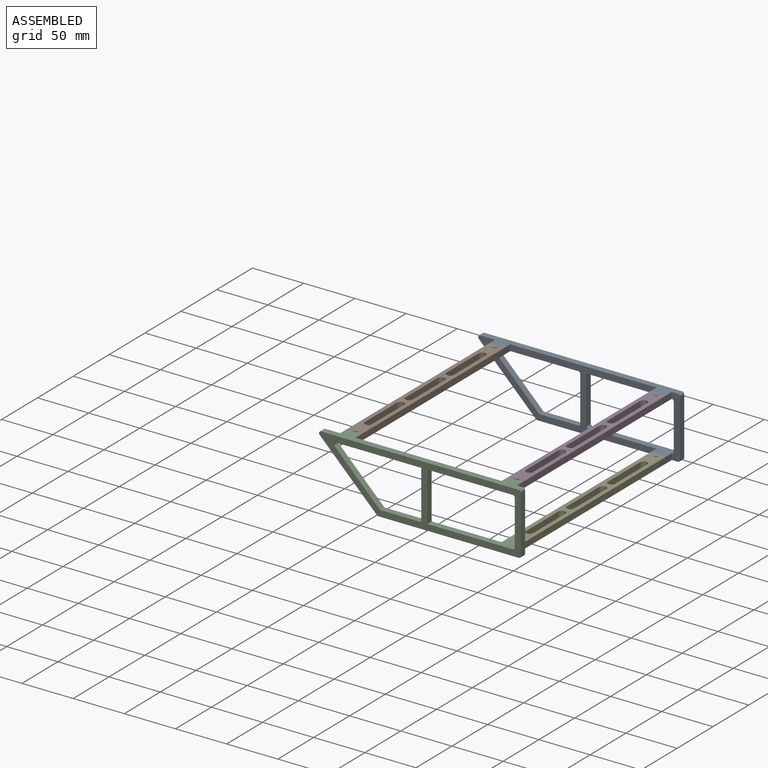
[diagram: assembled view]
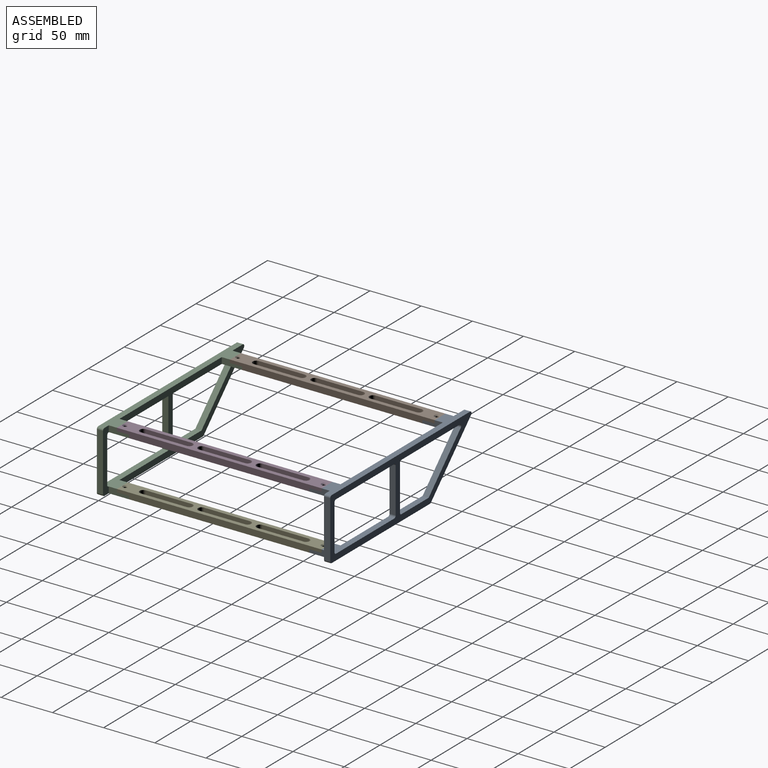
[diagram: assembled view, second angle]
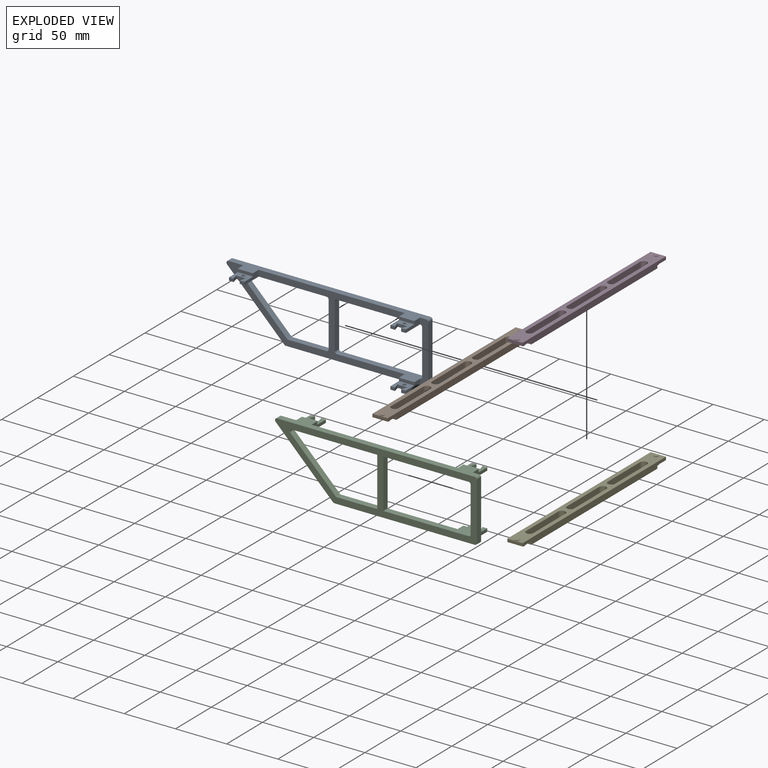
[diagram: exploded view]
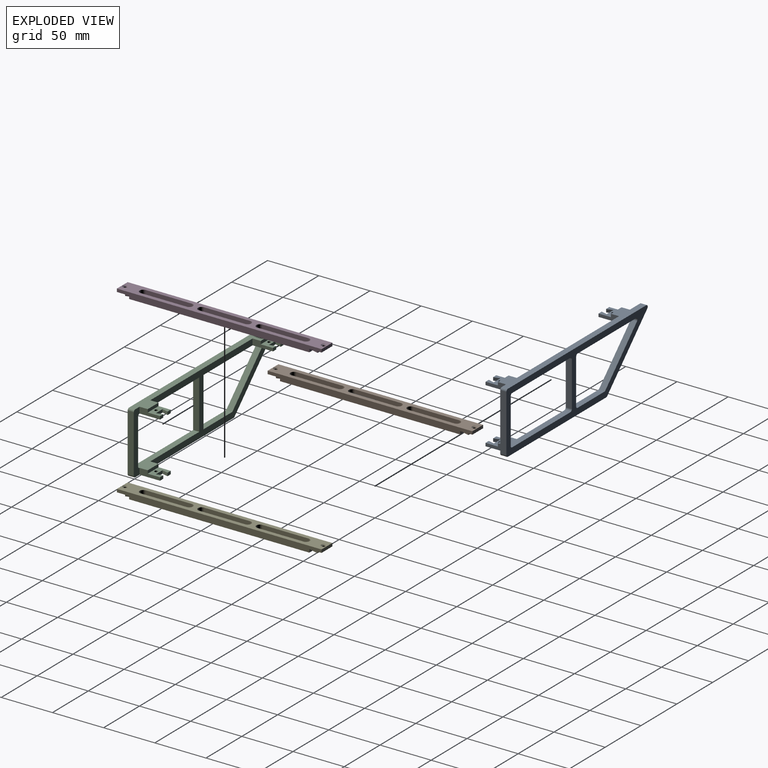
[diagram: exploded view, second angle]
ASSEMBLY  parts=5 mates=4
PART A: 56 faces, bbox 197.2x60x26 mm
  f0: plane 81.34x26mm, normal (0,-1,0), area 734.4mm2, adj f8,f10,f11,f12,f16,f23,f30,f35
  f1: plane 81.34x14mm, normal (0,1,0), area 608.1mm2, adj f16,f23,f29,f41,f42,f43,f53
  f2: plane 4.5x3mm, normal (0,0,1), area 13.5mm2, adj f3,f18,f42,f44
  f3: plane 15x12mm, normal (0,1,0), area 126.3mm2, adj f2,f4,f41,f42,f43,f44,f45,f46
  f4: plane 4.5x3mm, normal (0,0,1), area 13.5mm2, adj f3,f18,f41,f45
  f5: plane 60x8mm, normal (0,0,1), area 384mm2, adj f9,f13,f18,f19,f20,f25,f26,f28
  f6: plane 4.5x3mm, normal (0,0,1), area 13.5mm2, adj f7,f14,f32,f40
  f7: plane 81.34x26mm, normal (0,-1,0), area 734.4mm2, adj f6,f13,f14,f15,f16,f23,f28,f38
  f8: plane 4.5x3mm, normal (0,0,1), area 13.5mm2, adj f0,f10,f34,f37
  f9: plane 193.17x14mm, normal (0,1,0), area 1399mm2, adj f5,f10,f11,f13,f14,f16,f23,f26
  f10: plane 20x6mm, normal (-1,0,0), area 84mm2, adj f0,f8,f9,f16,f33,f34
  f11: plane 20x6mm, normal (1,0,0), area 84mm2, adj f0,f9,f12,f16,f33,f34
  f12: plane 4.5x3mm, normal (0,0,1), area 13.5mm2, adj f0,f11,f34,f35
  f13: plane 20x6mm, normal (1,0,0), area 84mm2, adj f5,f7,f9,f15,f31,f32
  f14: plane 20x6mm, normal (-1,0,0), area 84mm2, adj f6,f7,f9,f16,f31,f32
  f15: plane 4.5x3mm, normal (0,0,1), area 13.5mm2, adj f7,f13,f32,f38
  f16: plane 174.17x60mm, normal (0,0,1), area 2372.6mm2, adj f0,f1,f7,f9,f10,f11,f14,f17
  f17: plane 56x56mm, normal (-0.71,-0.71,0), area 475.2mm2, adj f16,f23,f24,f27
  f18: plane 137.17x26mm, normal (0,-1,0), area 1069.3mm2, adj f2,f4,f5,f16,f23,f24,f25,f41
  f19: plane 56x6mm, normal (1,0,0), area 336mm2, adj f5,f23,f25,f26
  f20: plane 44x6mm, normal (-1,0,0), area 264mm2, adj f5,f23,f28,f29
  f21: plane 38.17x6mm, normal (0,1,0), area 229mm2, adj f16,f22,f23,f52
  f22: plane 44.59x44.59mm, normal (0.71,0.71,0), area 378.3mm2, adj f16,f21,f23,f30
  f23: plane 197.17x60mm, normal (0,0,-1), area 3026.6mm2, adj f0,f1,f7,f9,f17,f18,f19,f20
  f24: cylinder r=2mm len=6mm, axis (0,0,-1), area 9.4mm2, adj f16,f17,f18,f23
  f25: cylinder r=2mm len=6mm, axis (0,0,-1), area 18.8mm2, adj f5,f18,f19,f23
  f26: cylinder r=2mm len=6mm, axis (0,0,-1), area 18.8mm2, adj f5,f9,f19,f23
  f27: cylinder r=2mm len=6mm, axis (0,0,-1), area 28.3mm2, adj f9,f16,f17,f23
  f28: cylinder r=2mm len=6mm, axis (0,0,1), area 18.8mm2, adj f5,f7,f20,f23
  f29: cylinder r=2mm len=6mm, axis (0,0,1), area 18.8mm2, adj f1,f5,f20,f23
  f30: cylinder r=2mm len=6mm, axis (0,0,1), area 28.3mm2, adj f0,f16,f22,f23
  f31: plane 15x3mm, normal (0,0,1), area 45mm2, adj f9,f13,f14,f32
  f32: plane 15x12mm, normal (0,1,0), area 126.3mm2, adj f6,f13,f14,f15,f31,f38,f39,f40
  f33: plane 15x3mm, normal (0,0,1), area 45mm2, adj f9,f10,f11,f34
  f34: plane 15x12mm, normal (0,1,0), area 126.3mm2, adj f8,f10,f11,f12,f33,f35,f36,f37
  f35: plane 6x3mm, normal (-0.97,0,-0.26), area 18.6mm2, adj f0,f12,f34,f36
  f36: plane 9.22x3mm, normal (0,0,1), area 27.6mm2, adj f0,f34,f35,f37
  f37: plane 6x3mm, normal (0.97,0,-0.26), area 18.6mm2, adj f0,f8,f34,f36
  f38: plane 6x3mm, normal (-0.97,0,-0.26), area 18.6mm2, adj f7,f15,f32,f39
  f39: plane 9.22x3mm, normal (0,0,1), area 27.6mm2, adj f7,f32,f38,f40
  f40: plane 6x3mm, normal (0.97,0,-0.26), area 18.6mm2, adj f6,f7,f32,f39
  f41: plane 20x6mm, normal (1,0,0), area 84mm2, adj f1,f3,f4,f5,f18,f43
  f42: plane 20x6mm, normal (-1,0,0), area 84mm2, adj f1,f2,f3,f16,f18,f43
  f43: plane 15x3mm, normal (0,0,1), area 45mm2, adj f1,f3,f41,f42
  f44: plane 6x3mm, normal (0.97,0,-0.26), area 18.6mm2, adj f2,f3,f18,f46
  f45: plane 6x3mm, normal (-0.97,0,-0.26), area 18.6mm2, adj f3,f4,f18,f46
  f46: plane 9.22x3mm, normal (0,0,1), area 27.6mm2, adj f3,f18,f44,f45
  f47: cylinder r=1.6mm len=3.2mm, axis (0,1,0), area 30.2mm2, adj f0,f34
  f48: cylinder r=1.6mm len=3.2mm, axis (0,1,0), area 30.2mm2, adj f7,f32
  f49: cylinder r=1.6mm len=3.2mm, axis (0,1,0), area 30.2mm2, adj f3,f18
  f50: plane 44x6mm, normal (1,0,0), area 264mm2, adj f16,f23,f53,f55
  f51: plane 44x6mm, normal (-1,0,0), area 264mm2, adj f16,f23,f52,f54
  f52: cylinder r=2mm len=6mm, axis (0,0,1), area 18.8mm2, adj f16,f21,f23,f51
  f53: cylinder r=2mm len=6mm, axis (0,0,-1), area 18.8mm2, adj f1,f16,f23,f50
  f54: cylinder r=2mm len=6mm, axis (0,0,1), area 18.8mm2, adj f0,f16,f23,f51
  f55: cylinder r=2mm len=6mm, axis (0,0,-1), area 18.8mm2, adj f7,f16,f23,f50
PART B: 34 faces, bbox 200x15x6 mm
  f0: plane 188x15mm, normal (0,0,1), area 1670.8mm2, adj f2,f4,f6,f7,f8,f9,f10,f12
  f1: plane 200x15mm, normal (0,0,-1), area 1897.1mm2, adj f2,f3,f4,f5,f18,f19,f20,f21
  f2: plane 200x6mm, normal (0,1,0), area 1128mm2, adj f0,f1,f3,f5,f6,f11,f12,f17
  f3: plane 15x3mm, normal (-1,0,0), area 45mm2, adj f1,f2,f4,f17
  f4: plane 200x6mm, normal (0,-1,0), area 1128mm2, adj f0,f1,f3,f5,f10,f11,f13,f17
  f5: plane 15x3mm, normal (1,0,0), area 45mm2, adj f1,f2,f4,f11
  f6: plane 4.5x3mm, normal (1,0,0), area 13.5mm2, adj f0,f2,f7,f11
  f7: plane 6x3mm, normal (-0.26,0.97,0), area 18.6mm2, adj f0,f6,f8,f11
  f8: plane 9.22x3mm, normal (1,0,0), area 27.6mm2, adj f0,f7,f9,f11
  f9: plane 6x3mm, normal (-0.26,-0.97,0), area 18.6mm2, adj f0,f8,f10,f11
  f10: plane 4.5x3mm, normal (1,0,0), area 13.5mm2, adj f0,f4,f9,f11
  f11: plane 15x12mm, normal (0,0,1), area 126.3mm2, adj f2,f4,f5,f6,f7,f8,f9,f10
  f12: plane 4.5x3mm, normal (-1,0,0), area 13.5mm2, adj f0,f2,f16,f17
  f13: plane 4.5x3mm, normal (-1,0,0), area 13.5mm2, adj f0,f4,f14,f17
  f14: plane 6x3mm, normal (0.26,-0.97,0), area 18.6mm2, adj f0,f13,f15,f17
  f15: plane 9.22x3mm, normal (-1,0,0), area 27.6mm2, adj f0,f14,f16,f17
  f16: plane 6x3mm, normal (0.26,0.97,0), area 18.6mm2, adj f0,f12,f15,f17
  f17: plane 15x12mm, normal (0,0,1), area 126.3mm2, adj f2,f3,f4,f12,f13,f14,f15,f16
  f18: cylinder r=3.5mm len=7mm, axis (0,0,1), area 66mm2, adj f0,f1,f19,f20
  f19: plane 45x6mm, normal (0,-1,0), area 270mm2, adj f0,f1,f18,f21
  f20: plane 45x6mm, normal (0,1,0), area 270mm2, adj f0,f1,f18,f21
  f21: cylinder r=3.5mm len=7mm, axis (0,0,1), area 66mm2, adj f0,f1,f19,f20
  f22: cylinder r=3.5mm len=7mm, axis (0,0,1), area 66mm2, adj f0,f1,f23,f24
  f23: plane 45x6mm, normal (0,-1,0), area 270mm2, adj f0,f1,f22,f25
  f24: plane 45x6mm, normal (0,1,0), area 270mm2, adj f0,f1,f22,f25
  f25: cylinder r=3.5mm len=7mm, axis (0,0,1), area 66mm2, adj f0,f1,f23,f24
  f26: cylinder r=3.5mm len=7mm, axis (0,0,1), area 66mm2, adj f0,f1,f27,f28
  f27: plane 45x6mm, normal (0,-1,0), area 270mm2, adj f0,f1,f26,f29
  f28: plane 45x6mm, normal (0,1,0), area 270mm2, adj f0,f1,f26,f29
  f29: cylinder r=3.5mm len=7mm, axis (0,0,1), area 66mm2, adj f0,f1,f27,f28
  f30: cylinder r=1.6mm len=3.2mm, axis (0,0,-1), area 20.1mm2, adj f17,f33
  f31: cylinder r=1.6mm len=3.2mm, axis (0,0,-1), area 20.1mm2, adj f11,f32
  f32: cone r=1.6mm half-angle=45deg, axis (0,0,-1), area 18.7mm2, adj f1,f31
  f33: cone r=1.6mm half-angle=45deg, axis (0,0,-1), area 18.7mm2, adj f1,f30
PART C: 52 faces, bbox 197.2x60x26 mm
  f0: plane 83.34x26mm, normal (0,-1,0), area 746.4mm2, adj f5,f6,f9,f10,f11,f15,f27,f28
  f1: plane 83.34x14mm, normal (0,1,0), area 620.1mm2, adj f27,f28,f34,f38,f39,f45,f50
  f2: plane 6x3mm, normal (-0.97,0,0.26), area 18.6mm2, adj f4,f17,f18,f46
  f3: plane 6x3mm, normal (0.97,0,0.26), area 18.6mm2, adj f4,f18,f40,f46
  f4: plane 9.22x3mm, normal (0,0,-1), area 27.6mm2, adj f2,f3,f18,f46
  f5: plane 20x6mm, normal (-1,0,0), area 84mm2, adj f0,f26,f28,f36,f43,f44
  f6: plane 20x6mm, normal (1,0,0), area 84mm2, adj f0,f15,f26,f28,f43,f44
  f7: plane 20x6mm, normal (1,0,0), area 84mm2, adj f16,f19,f21,f26,f41,f42
  f8: plane 20x6mm, normal (-1,0,0), area 84mm2, adj f19,f26,f28,f37,f41,f42
  f9: plane 6x3mm, normal (-0.97,0,0.26), area 18.6mm2, adj f0,f11,f15,f44
  f10: plane 6x3mm, normal (0.97,0,0.26), area 18.6mm2, adj f0,f11,f36,f44
  f11: plane 9.22x3mm, normal (0,0,-1), area 27.6mm2, adj f0,f9,f10,f44
  f12: plane 9.22x3mm, normal (0,0,-1), area 27.6mm2, adj f13,f14,f19,f42
  f13: plane 6x3mm, normal (0.97,0,0.26), area 18.6mm2, adj f12,f19,f37,f42
  f14: plane 6x3mm, normal (-0.97,0,0.26), area 18.6mm2, adj f12,f16,f19,f42
  f15: plane 4.5x3mm, normal (0,0,-1), area 13.5mm2, adj f0,f6,f9,f44
  f16: plane 4.5x3mm, normal (0,0,-1), area 13.5mm2, adj f7,f14,f19,f42
  f17: plane 4.5x3mm, normal (0,0,-1), area 13.5mm2, adj f2,f18,f38,f46
  f18: plane 137.17x26mm, normal (0,-1,0), area 1069.3mm2, adj f2,f3,f4,f17,f21,f27,f28,f29
  f19: plane 83.34x26mm, normal (0,-1,0), area 746.4mm2, adj f7,f8,f12,f13,f14,f16,f27,f28
  f20: plane 40.17x6mm, normal (0,1,0), area 241mm2, adj f25,f27,f28,f51
  f21: plane 60x8mm, normal (0,0,-1), area 384mm2, adj f7,f18,f23,f24,f26,f30,f31,f33
  f22: plane 56x56mm, normal (-0.71,-0.71,0), area 475.2mm2, adj f27,f28,f29,f32
  f23: plane 56x6mm, normal (1,0,0), area 336mm2, adj f21,f27,f30,f31
  f24: plane 44x6mm, normal (-1,0,0), area 264mm2, adj f21,f27,f33,f34
  f25: plane 44.59x44.59mm, normal (0.71,0.71,0), area 378.3mm2, adj f20,f27,f28,f35
  f26: plane 193.17x14mm, normal (0,1,0), area 1399mm2, adj f5,f6,f7,f8,f21,f27,f28,f31
  f27: plane 197.17x60mm, normal (0,0,1), area 3023.2mm2, adj f0,f1,f18,f19,f20,f22,f23,f24
  f28: plane 174.17x60mm, normal (0,0,-1), area 2369.2mm2, adj f0,f1,f5,f6,f8,f18,f19,f20
  f29: cylinder r=2mm len=6mm, axis (0,0,-1), area 9.4mm2, adj f18,f22,f27,f28
  f30: cylinder r=2mm len=6mm, axis (0,0,-1), area 18.8mm2, adj f18,f21,f23,f27
  f31: cylinder r=2mm len=6mm, axis (0,0,-1), area 18.8mm2, adj f21,f23,f26,f27
  f32: cylinder r=2mm len=6mm, axis (0,0,-1), area 28.3mm2, adj f22,f26,f27,f28
  f33: cylinder r=2mm len=6mm, axis (0,0,1), area 18.8mm2, adj f19,f21,f24,f27
  f34: cylinder r=2mm len=6mm, axis (0,0,1), area 18.8mm2, adj f1,f21,f24,f27
  f35: cylinder r=2mm len=6mm, axis (0,0,1), area 28.3mm2, adj f0,f25,f27,f28
  f36: plane 4.5x3mm, normal (0,0,-1), area 13.5mm2, adj f0,f5,f10,f44
  f37: plane 4.5x3mm, normal (0,0,-1), area 13.5mm2, adj f8,f13,f19,f42
  f38: plane 20x6mm, normal (1,0,0), area 84mm2, adj f1,f17,f18,f21,f45,f46
  f39: plane 20x6mm, normal (-1,0,0), area 84mm2, adj f1,f18,f28,f40,f45,f46
  f40: plane 4.5x3mm, normal (0,0,-1), area 13.5mm2, adj f3,f18,f39,f46
  f41: plane 15x3mm, normal (0,0,-1), area 45mm2, adj f7,f8,f26,f42
  f42: plane 15x12mm, normal (0,1,0), area 126.3mm2, adj f7,f8,f12,f13,f14,f16,f37,f41
  f43: plane 15x3mm, normal (0,0,-1), area 45mm2, adj f5,f6,f26,f44
  f44: plane 15x12mm, normal (0,1,0), area 126.3mm2, adj f5,f6,f9,f10,f11,f15,f36,f43
  f45: plane 15x3mm, normal (0,0,-1), area 45mm2, adj f1,f38,f39,f46
  f46: plane 15x12mm, normal (0,1,0), area 126.3mm2, adj f2,f3,f4,f17,f38,f39,f40,f45
  f47: cylinder r=1.6mm len=3.2mm, axis (0,1,0), area 30.2mm2, adj f18,f46
  f48: cylinder r=1.6mm len=3.2mm, axis (0,1,0), area 30.2mm2, adj f19,f42
  f49: cylinder r=1.6mm len=3.2mm, axis (0,1,0), area 30.2mm2, adj f0,f44
  f50: plane 48x6mm, normal (1,0,0), area 288mm2, adj f1,f19,f27,f28
  f51: plane 48x6mm, normal (-1,0,0), area 288mm2, adj f0,f20,f27,f28
PART D: same geometry as B
PART E: same geometry as B
PLACE A rot(axis=(1,0,0),90deg) t=(-13.29,86.06,15.53)mm
PLACE B rot(axis=(0.71,0.71,0),180deg) t=(-116.48,-27.94,45.53)mm
PLACE C rot(axis=(1,0,0),90deg) t=(-13.29,-135.94,15.53)mm
PLACE D rot(axis=(0.71,0.71,0),180deg) t=(41.21,-27.94,45.53)mm
PLACE E rot(axis=(0.71,0.71,0),180deg) t=(41.21,-27.94,-8.47)mm
MATE revolute A.f47 <-> B.f31  axis (0,0,1) through (-116.48,69.06,42.53)mm
MATE revolute C.f49 <-> B.f30  axis (0,0,1) through (-116.48,-124.94,42.53)mm
MATE revolute D.f30 <-> C.f47  axis (0,0,-1) through (41.21,-124.94,42.53)mm
MATE revolute E.f30 <-> C.f47  axis (0,0,-1) through (41.21,-124.94,-11.47)mm
